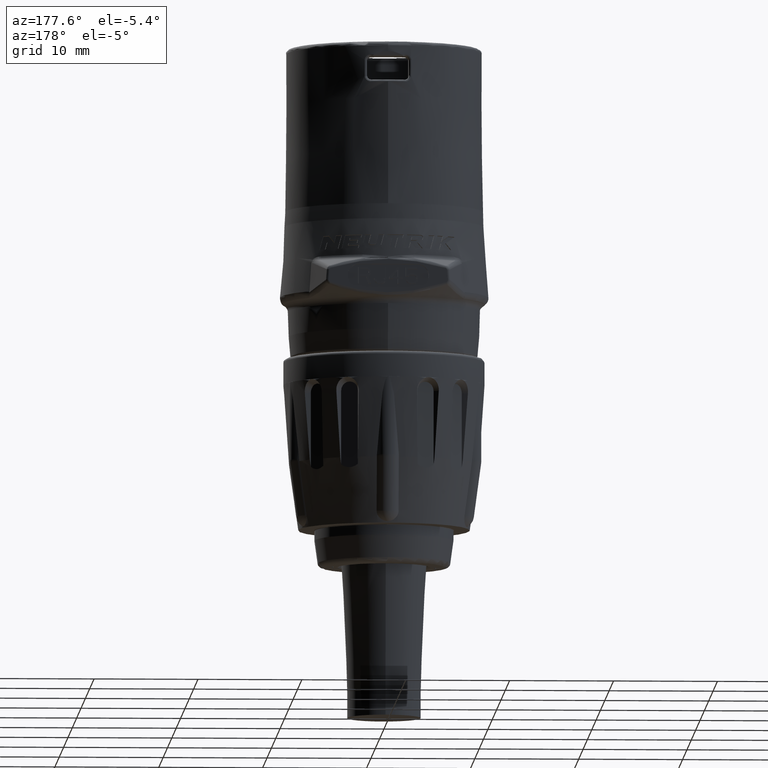
[diagram: clean part render]
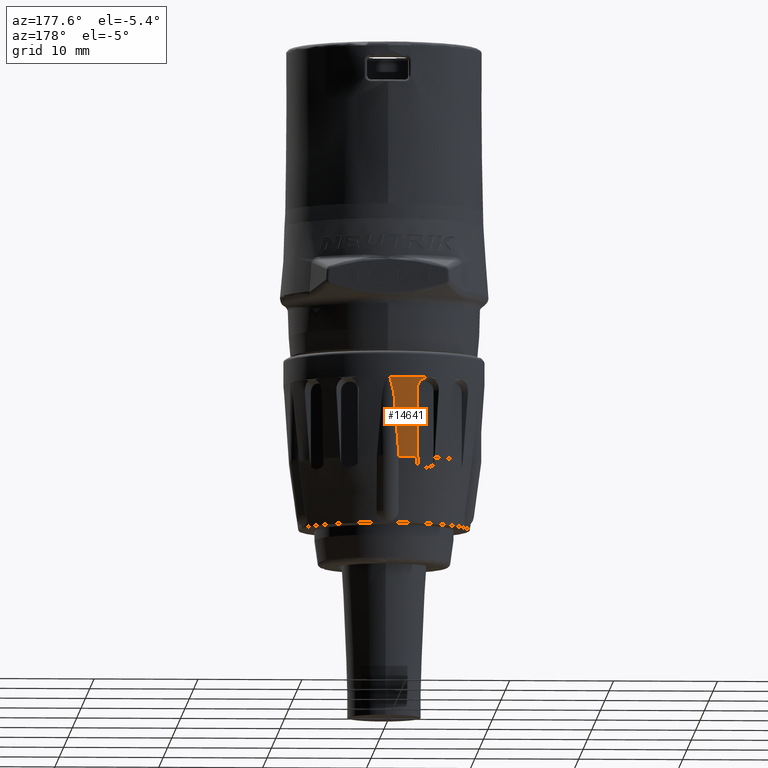
[diagram: same view with one face highlighted and labeled with its STEP entity id]
A machine part, auxiliary view. The second image highlights one B-rep face of the part: STEP entity #14641.
In plain terms, the highlighted conical surface has half-angle 4 deg.
Its self-contained STEP definition (entity closure, byte-faithful):
#4135=CARTESIAN_POINT('',(0.E0,0.E0,-2.518362521544E1));
#4136=DIRECTION('',(0.E0,0.E0,1.E0));
#4137=DIRECTION('',(-1.155273994055E-1,9.933042937522E-1,0.E0));
#4138=AXIS2_PLACEMENT_3D('',#4135,#4136,#4137);
#4298=CARTESIAN_POINT('',(-1.055655709294E0,9.076525172056E0,
-2.518362521544E1));
#4299=CARTESIAN_POINT('',(-1.056301624079E0,9.077407033631E0,
-2.517003132036E1));
#4300=CARTESIAN_POINT('',(-1.057589789813E0,9.079172169632E0,
-2.514282814630E1));
#4301=CARTESIAN_POINT('',(-1.058870654270E0,9.080940132269E0,
-2.511559420755E1));
#4302=CARTESIAN_POINT('',(-1.059509267677E0,9.081824820481E0,
-2.510196954776E1));
#4304=CARTESIAN_POINT('',(-1.059509267677E0,9.081824820481E0,
-2.510196954776E1));
#4305=CARTESIAN_POINT('',(-1.060230536645E0,9.082824013649E0,
-2.508658145192E1));
#4306=CARTESIAN_POINT('',(-1.060946007015E0,9.084906939982E0,
-2.505580819555E1));
#4307=CARTESIAN_POINT('',(-1.060211097672E0,9.087158838871E0,
-2.502504094636E1));
#4308=CARTESIAN_POINT('',(-1.059479723247E0,9.088327005352E0,
-2.500965883924E1));
#4310=CARTESIAN_POINT('',(-1.059479723247E0,9.088327005352E0,
-2.500965883924E1));
#4311=CARTESIAN_POINT('',(-1.046687614847E0,9.108758827602E0,
-2.474061801001E1));
#4312=CARTESIAN_POINT('',(-1.020697103620E0,9.147522572337E0,
-2.423190411979E1));
#4313=CARTESIAN_POINT('',(-9.846121363448E-1,9.195905427061E0,
-2.360018462540E1));
#4314=CARTESIAN_POINT('',(-9.446011708091E-1,9.244412279184E0,
-2.296982530512E1));
#4315=CARTESIAN_POINT('',(-9.073882462793E-1,9.285264702117E0,
-2.244133769932E1));
#4316=CARTESIAN_POINT('',(-8.704661514671E-1,9.322639972449E0,
-2.195954089212E1));
#4317=CARTESIAN_POINT('',(-8.313539525620E-1,9.358900525549E0,
-2.149382469786E1));
#4318=CARTESIAN_POINT('',(-7.966347136705E-1,9.388612153043E0,
-2.111342151527E1));
#4319=CARTESIAN_POINT('',(-7.601548666554E-1,9.417676759637E0,
-2.074228327616E1));
#4320=CARTESIAN_POINT('',(-7.232114248672E-1,9.444851906401E0,
-2.039623258620E1));
#4321=CARTESIAN_POINT('',(-6.896568777364E-1,9.467760365469E0,
-2.010520502625E1));
#4322=CARTESIAN_POINT('',(-6.576852895423E-1,9.488252391751E0,
-1.984536424889E1));
#4323=CARTESIAN_POINT('',(-6.209982607896E-1,9.510091704672E0,
-1.956899810248E1));
#4324=CARTESIAN_POINT('',(-5.884809670458E-1,9.527986017983E0,
-1.934299625064E1));
#4325=CARTESIAN_POINT('',(-5.589016857746E-1,9.543256299060E0,
-1.915040971323E1));
#4326=CARTESIAN_POINT('',(-5.276343623085E-1,9.558382137565E0,
-1.895990248853E1));
#4327=CARTESIAN_POINT('',(-4.935792939777E-1,9.573605905474E0,
-1.876844139422E1));
#4328=CARTESIAN_POINT('',(-4.634309147646E-1,9.586062573403E0,
-1.861198388425E1));
#4329=CARTESIAN_POINT('',(-4.349549757943E-1,9.596987002126E0,
-1.847491632983E1));
#4330=CARTESIAN_POINT('',(-4.095569770466E-1,9.606155520429E0,
-1.835997355039E1));
#4331=CARTESIAN_POINT('',(-3.738311703602E-1,9.617969339299E0,
-1.821201471942E1));
#4332=CARTESIAN_POINT('',(-3.441773873427E-1,9.626806981407E0,
-1.810144450797E1));
#4333=CARTESIAN_POINT('',(-3.152053794703E-1,9.634705165316E0,
-1.800269731859E1));
#4334=CARTESIAN_POINT('',(-2.912459841846E-1,9.640697551214E0,
-1.792782350456E1));
#4335=CARTESIAN_POINT('',(-2.594176994663E-1,9.647966742061E0,
-1.783704575950E1));
#4336=CARTESIAN_POINT('',(-2.231197173567E-1,9.655090603571E0,
-1.774814762144E1));
#4337=CARTESIAN_POINT('',(-1.913389206656E-1,9.660405045372E0,
-1.768186701556E1));
#4338=CARTESIAN_POINT('',(-1.615341428009E-1,9.664596660419E0,
-1.762961152174E1));
#4339=CARTESIAN_POINT('',(-1.337721359844E-1,9.668054287247E0,
-1.758651907299E1));
#4340=CARTESIAN_POINT('',(-8.452734879258E-2,9.672395573763E0,
-1.753243467004E1));
#4341=CARTESIAN_POINT('',(-4.967541124895E-2,9.674206663575E0,
-1.750987974112E1));
#4342=CARTESIAN_POINT('',(-1.710955775632E-2,9.675000000071E0,
-1.750000000821E1));
#4343=CARTESIAN_POINT('',(1.300000281563E-9,9.675E0,-1.750000000923E1));
#4345=CARTESIAN_POINT('',(0.E0,0.E0,-1.75E1));
#4346=DIRECTION('',(0.E0,0.E0,1.E0));
#4347=DIRECTION('',(0.E0,1.E0,0.E0));
#4348=AXIS2_PLACEMENT_3D('',#4345,#4346,#4347);
#4350=CARTESIAN_POINT('',(-2.812473836223E0,9.165595363056E0,
-1.875357198035E1));
#4351=CARTESIAN_POINT('',(-2.811831132328E0,9.171710282148E0,
-1.867266920481E1));
#4352=CARTESIAN_POINT('',(-2.822874944907E0,9.179208282332E0,
-1.852295226996E1));
#4353=CARTESIAN_POINT('',(-2.889292775153E0,9.176870493992E0,
-1.827468663532E1));
#4354=CARTESIAN_POINT('',(-2.999239681068E0,9.158023057949E0,
-1.805272287586E1));
#4355=CARTESIAN_POINT('',(-3.143776784199E0,9.123768390578E0,
-1.786114732648E1));
#4356=CARTESIAN_POINT('',(-3.316416293092E0,9.074288731631E0,
-1.770488885669E1));
#4357=CARTESIAN_POINT('',(-3.516641532846E0,9.007757526669E0,
-1.758556998406E1));
#4358=CARTESIAN_POINT('',(-3.729667611926E0,8.927072973881E0,
-1.751459569451E1));
#4359=CARTESIAN_POINT('',(-3.866781086583E0,8.869004130202E0,
-1.750000001724E1));
#4360=CARTESIAN_POINT('',(-3.935180031001E0,8.838550962916E0,
-1.749999999999E1));
#4454=CARTESIAN_POINT('',(-2.812473836223E0,9.165595363056E0,
-1.875357198035E1));
#4455=CARTESIAN_POINT('',(-2.818352639840E0,9.109662282885E0,
-1.949358854681E1));
#4456=CARTESIAN_POINT('',(-2.830090445234E0,8.999187624685E0,
-2.095140950038E1));
#4457=CARTESIAN_POINT('',(-2.847031592323E0,8.837511199650E0,
-2.308156229355E1));
#4458=CARTESIAN_POINT('',(-2.858291939418E0,8.730485526254E0,
-2.448669626406E1));
#4459=CARTESIAN_POINT('',(-2.863879686151E0,8.677321667357E0,
-2.518362521544E1));
#9019=VERTEX_POINT('',#4310);
#9020=VERTEX_POINT('',#4343);
#9022=VERTEX_POINT('',#4298);
#9023=VERTEX_POINT('',#4302);
#9068=CARTESIAN_POINT('',(-3.935181108891E0,8.838550482982E0,-1.75E1));
#9069=VERTEX_POINT('',#9068);
#9072=VERTEX_POINT('',#4454);
#9073=VERTEX_POINT('',#4459);
#14623=CARTESIAN_POINT('',(0.E0,0.E0,-2.134181260772E1));
#14624=DIRECTION('',(0.E0,0.E0,1.E0));
#14625=DIRECTION('',(-1.E0,0.E0,0.E0));
#14626=AXIS2_PLACEMENT_3D('',#14623,#14624,#14625);
#14627=CONICAL_SURFACE('',#14626,9.406354292258E0,4.E0);
#14629=ORIENTED_EDGE('',*,*,#14628,.T.);
#14630=ORIENTED_EDGE('',*,*,#14501,.F.);
#14631=ORIENTED_EDGE('',*,*,#14611,.T.);
#14633=ORIENTED_EDGE('',*,*,#14632,.T.);
#14635=ORIENTED_EDGE('',*,*,#14634,.T.);
#14636=ORIENTED_EDGE('',*,*,#14013,.T.);
#14638=ORIENTED_EDGE('',*,*,#14637,.F.);
#14639=EDGE_LOOP('',(#14629,#14630,#14631,#14633,#14635,#14636,#14638));
#14640=FACE_OUTER_BOUND('',#14639,.F.);
#14641=ADVANCED_FACE('',(#14640),#14627,.T.);
#4139=CIRCLE('',#4138,9.137708584516E0);
#4303=B_SPLINE_CURVE_WITH_KNOTS('',3,(#4298,#4299,#4300,#4301,#4302),
.UNSPECIFIED.,.F.,.F.,(4,1,4),(0.E0,5.E-1,1.E0),.UNSPECIFIED.);
#4309=B_SPLINE_CURVE_WITH_KNOTS('',3,(#4304,#4305,#4306,#4307,#4308),
.UNSPECIFIED.,.F.,.F.,(4,1,4),(0.E0,5.E-1,1.E0),.UNSPECIFIED.);
#4344=B_SPLINE_CURVE_WITH_KNOTS('',3,(#4310,#4311,#4312,#4313,#4314,#4315,#4316,
#4317,#4318,#4319,#4320,#4321,#4322,#4323,#4324,#4325,#4326,#4327,#4328,#4329,
#4330,#4331,#4332,#4333,#4334,#4335,#4336,#4337,#4338,#4339,#4340,#4341,#4342,
#4343),.UNSPECIFIED.,.F.,.F.,(4,1,1,1,1,1,1,1,1,1,1,1,1,1,1,1,1,1,1,1,1,1,1,1,1,
1,1,1,1,1,1,4),(0.E0,3.225806451613E-2,6.451612903226E-2,9.677419354839E-2,
1.290322580645E-1,1.612903225806E-1,1.935483870968E-1,2.258064516129E-1,
2.580645161290E-1,2.903225806452E-1,3.225806451613E-1,3.548387096774E-1,
3.870967741935E-1,4.193548387097E-1,4.516129032258E-1,4.838709677419E-1,
5.161290322581E-1,5.483870967742E-1,5.806451612903E-1,6.129032258065E-1,
6.451612903226E-1,6.774193548387E-1,7.096774193548E-1,7.419354838710E-1,
7.741935483871E-1,8.064516129032E-1,8.387096774194E-1,8.709677419355E-1,
9.032258064516E-1,9.354838709677E-1,9.677419354839E-1,1.E0),.UNSPECIFIED.);
#4349=CIRCLE('',#4348,9.675E0);
#4361=B_SPLINE_CURVE_WITH_KNOTS('',3,(#4350,#4351,#4352,#4353,#4354,#4355,#4356,
#4357,#4358,#4359,#4360),.UNSPECIFIED.,.F.,.F.,(4,1,1,1,1,1,1,1,4),(0.E0,
1.25E-1,2.5E-1,3.75E-1,5.E-1,6.25E-1,7.5E-1,8.75E-1,1.E0),.UNSPECIFIED.);
#4460=B_SPLINE_CURVE_WITH_KNOTS('',3,(#4454,#4455,#4456,#4457,#4458,#4459),
.UNSPECIFIED.,.F.,.F.,(4,1,1,4),(0.E0,3.333333333333E-1,6.666666666667E-1,1.E0),
.UNSPECIFIED.);
#14013=EDGE_CURVE('',#9020,#9069,#4349,.T.);
#14501=EDGE_CURVE('',#9022,#9073,#4139,.T.);
#14611=EDGE_CURVE('',#9022,#9023,#4303,.T.);
#14628=EDGE_CURVE('',#9072,#9073,#4460,.T.);
#14632=EDGE_CURVE('',#9023,#9019,#4309,.T.);
#14634=EDGE_CURVE('',#9019,#9020,#4344,.T.);
#14637=EDGE_CURVE('',#9072,#9069,#4361,.T.);